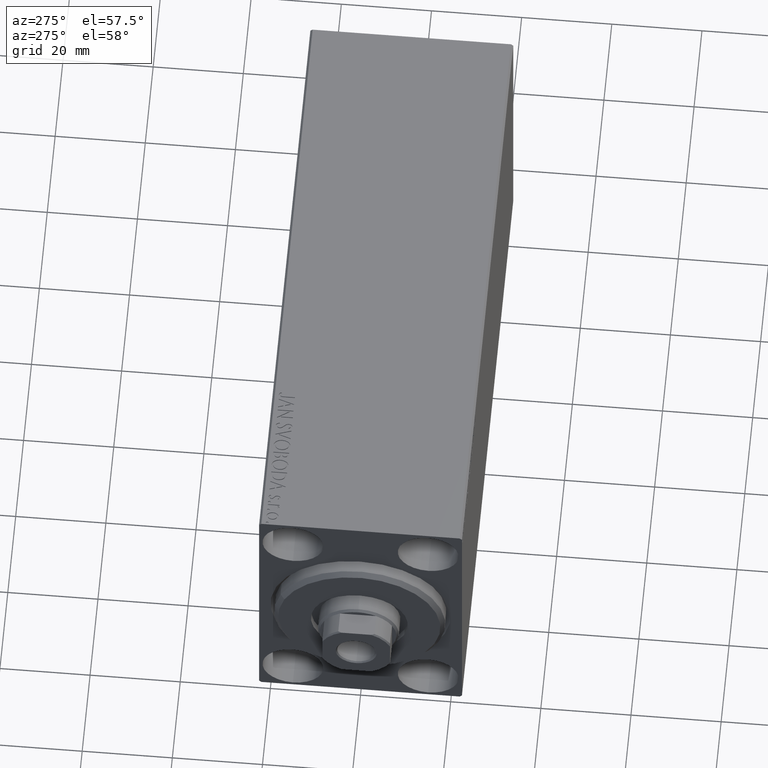
[diagram: clean part render]
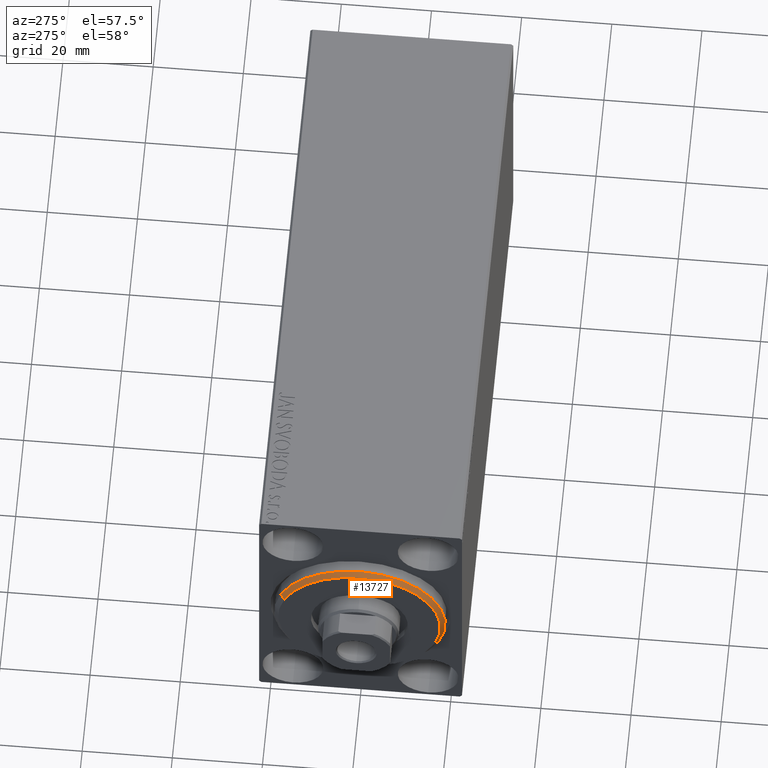
[diagram: same view with one face highlighted and labeled with its STEP entity id]
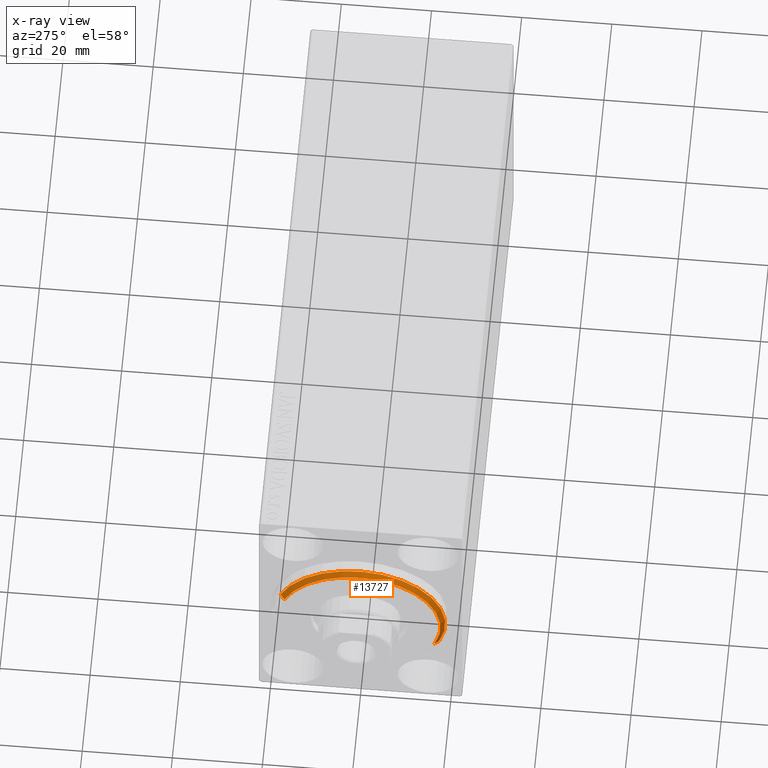
[diagram: x-ray of the same camera — body ghosted, the highlighted face saturated]
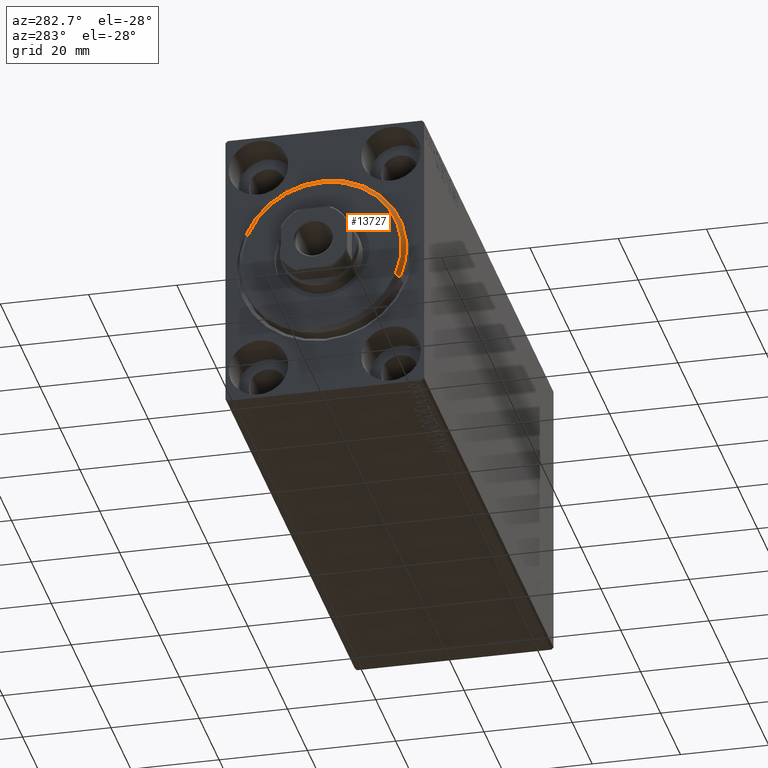
[diagram: same view with one face highlighted and labeled with its STEP entity id]
A machine part, auxiliary view. The second image highlights one B-rep face of the part: STEP entity #13727.
The next image is the same camera in x-ray: the body ghosted, the highlighted face saturated — about 0% of this face is hidden behind the body in this view.
A second angle (auxiliary view) of the same face is appended — the face is thin or edge-on in the first view.
In plain terms, the highlighted conical surface has half-angle 45 deg.
Its self-contained STEP definition (entity closure, byte-faithful):
#85 = DIRECTION ( 'NONE',  ( -1.000000000000000000, 0.000000000000000000, 0.000000000000000000 ) ) ;
#3012 = CARTESIAN_POINT ( 'NONE',  ( 1.999999999999992228, 0.000000000000000000, 19.00000000000000000 ) ) ;
#3291 = EDGE_LOOP ( 'NONE', ( #28632, #14750, #23666, #4564 ) ) ;
#4564 = ORIENTED_EDGE ( 'NONE', *, *, #17718, .F. ) ;
#5015 = CARTESIAN_POINT ( 'NONE',  ( 3.000000000000000000, 2.204364238465235033E-15, -17.99999999999999645 ) ) ;
#5237 = LINE ( 'NONE', #5015, #12866 ) ;
#11209 = EDGE_CURVE ( 'NONE', #34446, #38480, #42858, .T. ) ;
#12866 = VECTOR ( 'NONE', #42220, 1000.000000000000000 ) ;
#13727 = ADVANCED_FACE ( 'NONE', ( #30426 ), #16052, .T. ) ;
#14750 = ORIENTED_EDGE ( 'NONE', *, *, #11209, .F. ) ;
#15565 = CARTESIAN_POINT ( 'NONE',  ( 1.999999999999992228, 2.326828918379970970E-15, -19.00000000000000000 ) ) ;
#16034 = CARTESIAN_POINT ( 'NONE',  ( 3.000000000000000000, 2.265596578422603002E-15, -17.99999999999999645 ) ) ;
#16052 = CONICAL_SURFACE ( 'NONE', #18867, 17.99999999999999645, 0.7853981633974466137 ) ;
#16829 = AXIS2_PLACEMENT_3D ( 'NONE', #37521, #85, #31296 ) ;
#17087 = DIRECTION ( 'NONE',  ( 1.000000000000000000, -0.000000000000000000, 0.000000000000000000 ) ) ;
#17718 = EDGE_CURVE ( 'NONE', #23314, #22109, #37346, .T. ) ;
#18867 = AXIS2_PLACEMENT_3D ( 'NONE', #23578, #29779, #26887 ) ;
#22023 = DIRECTION ( 'NONE',  ( -0.7071067811865487940, 0.000000000000000000, 0.7071067811865463515 ) ) ;
#22109 = VERTEX_POINT ( 'NONE', #3012 ) ;
#22463 = LINE ( 'NONE', #25117, #38970 ) ;
#23314 = VERTEX_POINT ( 'NONE', #15565 ) ;
#23578 = CARTESIAN_POINT ( 'NONE',  ( 3.000000000000000000, 0.000000000000000000, 0.000000000000000000 ) ) ;
#23666 = ORIENTED_EDGE ( 'NONE', *, *, #26124, .T. ) ;
#23764 = AXIS2_PLACEMENT_3D ( 'NONE', #33488, #17087, #36376 ) ;
#25117 = CARTESIAN_POINT ( 'NONE',  ( 3.000000000000000000, 0.000000000000000000, 17.99999999999999645 ) ) ;
#26124 = EDGE_CURVE ( 'NONE', #34446, #22109, #22463, .T. ) ;
#26887 = DIRECTION ( 'NONE',  ( 0.000000000000000000, 0.000000000000000000, 1.000000000000000000 ) ) ;
#28632 = ORIENTED_EDGE ( 'NONE', *, *, #35288, .F. ) ;
#29779 = DIRECTION ( 'NONE',  ( -1.000000000000000000, 0.000000000000000000, 0.000000000000000000 ) ) ;
#30426 = FACE_OUTER_BOUND ( 'NONE', #3291, .T. ) ;
#31296 = DIRECTION ( 'NONE',  ( 0.000000000000000000, 0.000000000000000000, -1.000000000000000000 ) ) ;
#33488 = CARTESIAN_POINT ( 'NONE',  ( 3.000000000000000000, 0.000000000000000000, 0.000000000000000000 ) ) ;
#34446 = VERTEX_POINT ( 'NONE', #39919 ) ;
#35288 = EDGE_CURVE ( 'NONE', #38480, #23314, #5237, .T. ) ;
#36376 = DIRECTION ( 'NONE',  ( 0.000000000000000000, 0.000000000000000000, -1.000000000000000000 ) ) ;
#37346 = CIRCLE ( 'NONE', #16829, 19.00000000000000000 ) ;
#37521 = CARTESIAN_POINT ( 'NONE',  ( 1.999999999999992228, 0.000000000000000000, 0.000000000000000000 ) ) ;
#38480 = VERTEX_POINT ( 'NONE', #16034 ) ;
#38970 = VECTOR ( 'NONE', #22023, 1000.000000000000000 ) ;
#39919 = CARTESIAN_POINT ( 'NONE',  ( 3.000000000000000000, 0.000000000000000000, 17.99999999999999645 ) ) ;
#42220 = DIRECTION ( 'NONE',  ( -0.7071067811865487940, 8.659560562354918067E-17, -0.7071067811865463515 ) ) ;
#42858 = CIRCLE ( 'NONE', #23764, 17.99999999999999645 ) ;